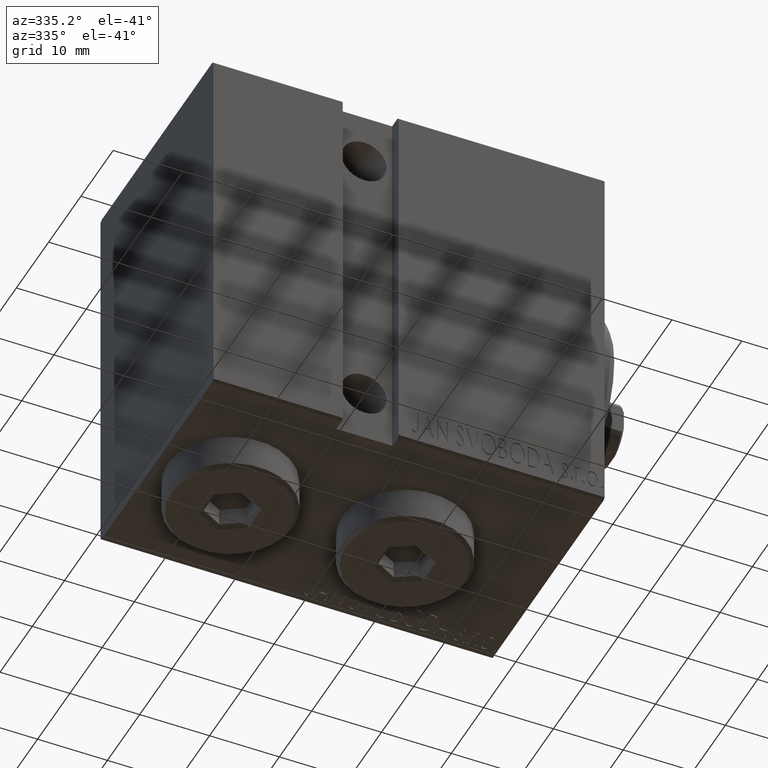
[diagram: clean part render]
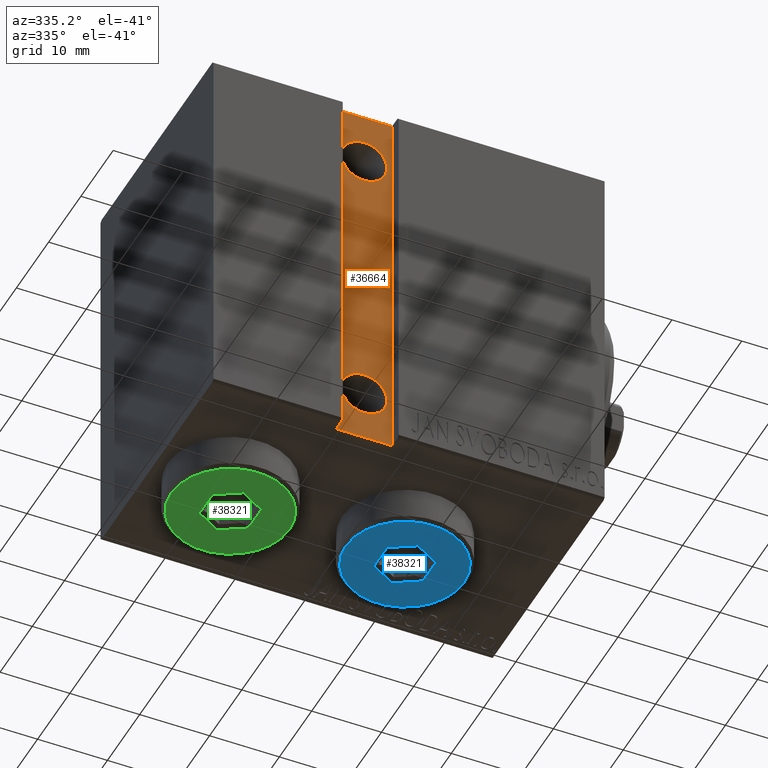
[diagram: same view with three faces highlighted in distinct colors, each labeled with its STEP entity id]
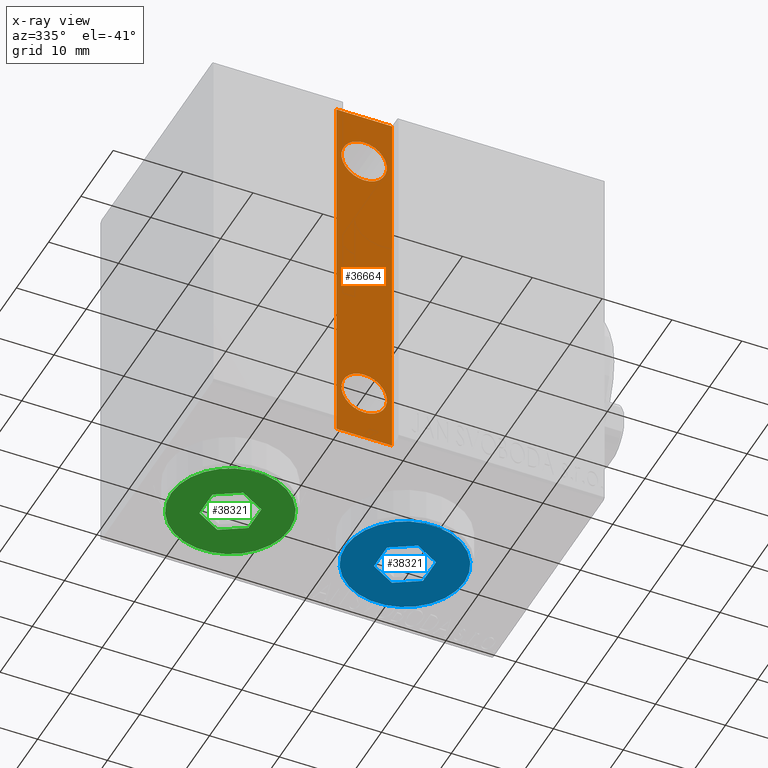
[diagram: x-ray of the same camera — body ghosted, the three highlighted faces saturated]
A machine part, auxiliary view with three faces highlighted in distinct colors.
The next image is the same camera in x-ray (body ghosted, the three faces saturated) — at least one of them is partly hidden behind the body in this view.
Their STEP definitions:

[orange] entity #36664 — the highlighted planar face has unit normal (0, 1, 0).
#680 = CARTESIAN_POINT ( 'NONE',  ( 33.50000000000000000, 15.50000000000000000, -16.75000000000000000 ) ) ;
#1299 = ORIENTED_EDGE ( 'NONE', *, *, #29968, .T. ) ;
#1307 = EDGE_CURVE ( 'NONE', #3822, #16491, #11708, .T. ) ;
#2926 = VERTEX_POINT ( 'NONE', #3183 ) ;
#3183 = CARTESIAN_POINT ( 'NONE',  ( 29.50000000000000000, 15.50000000000000178, -27.50000000000000711 ) ) ;
#3462 = CARTESIAN_POINT ( 'NONE',  ( 29.50000000000000711, 15.50000000000000178, 27.50000000000002132 ) ) ;
#3570 = DIRECTION ( 'NONE',  ( 0.000000000000000000, -1.000000000000000000, 0.000000000000000000 ) ) ;
#3822 = VERTEX_POINT ( 'NONE', #10920 ) ;
#3883 = AXIS2_PLACEMENT_3D ( 'NONE', #36866, #3570, #20327 ) ;
#4035 = EDGE_CURVE ( 'NONE', #17334, #8797, #26997, .T. ) ;
#4231 = DIRECTION ( 'NONE',  ( 0.000000000000000000, 0.000000000000000000, -1.000000000000000000 ) ) ;
#5795 = CARTESIAN_POINT ( 'NONE',  ( 33.50000000000000000, 15.50000000000000000, -20.00000000000000000 ) ) ;
#5857 = AXIS2_PLACEMENT_3D ( 'NONE', #5795, #26376, #16515 ) ;
#7130 = FACE_OUTER_BOUND ( 'NONE', #17504, .T. ) ;
#7132 = VERTEX_POINT ( 'NONE', #34988 ) ;
#8703 = VECTOR ( 'NONE', #23869, 1000.000000000000000 ) ;
#8797 = VERTEX_POINT ( 'NONE', #19573 ) ;
#8981 = CARTESIAN_POINT ( 'NONE',  ( 37.50000000000000000, 15.50000000000000178, 27.50000000000002132 ) ) ;
#10266 = FACE_BOUND ( 'NONE', #27290, .T. ) ;
#10920 = CARTESIAN_POINT ( 'NONE',  ( 33.50000000000000000, 15.50000000000000000, 16.75000000000000000 ) ) ;
#10959 = ORIENTED_EDGE ( 'NONE', *, *, #25406, .T. ) ;
#11269 = CARTESIAN_POINT ( 'NONE',  ( 29.50000000000000000, 15.50000000000000178, -27.50000000000000711 ) ) ;
#11708 = CIRCLE ( 'NONE', #35959, 3.249999999999999556 ) ;
#13540 = CARTESIAN_POINT ( 'NONE',  ( 37.50000000000000000, 15.50000000000000178, 27.50000000000002132 ) ) ;
#13832 = PLANE ( 'NONE',  #3883 ) ;
#13995 = LINE ( 'NONE', #13540, #8703 ) ;
#14570 = VECTOR ( 'NONE', #27834, 1000.000000000000000 ) ;
#16226 = ORIENTED_EDGE ( 'NONE', *, *, #1307, .T. ) ;
#16423 = EDGE_CURVE ( 'NONE', #8797, #2926, #35782, .T. ) ;
#16491 = VERTEX_POINT ( 'NONE', #39801 ) ;
#16515 = DIRECTION ( 'NONE',  ( 0.000000000000000000, 0.000000000000000000, -1.000000000000000000 ) ) ;
#17334 = VERTEX_POINT ( 'NONE', #8981 ) ;
#17504 = EDGE_LOOP ( 'NONE', ( #1299, #10959, #23547, #28820 ) ) ;
#18679 = EDGE_CURVE ( 'NONE', #16491, #3822, #25229, .T. ) ;
#19573 = CARTESIAN_POINT ( 'NONE',  ( 37.50000000000000000, 15.50000000000000355, -27.50000000000000355 ) ) ;
#20249 = DIRECTION ( 'NONE',  ( 0.000000000000000000, 0.000000000000000000, -1.000000000000000000 ) ) ;
#20327 = DIRECTION ( 'NONE',  ( 0.000000000000000000, -0.000000000000000000, -1.000000000000000000 ) ) ;
#20846 = EDGE_LOOP ( 'NONE', ( #33884, #35013 ) ) ;
#21847 = VERTEX_POINT ( 'NONE', #3462 ) ;
#22642 = DIRECTION ( 'NONE',  ( 0.000000000000000000, 0.000000000000000000, -1.000000000000000000 ) ) ;
#23007 = CIRCLE ( 'NONE', #5857, 3.249999999999999556 ) ;
#23547 = ORIENTED_EDGE ( 'NONE', *, *, #4035, .T. ) ;
#23696 = FACE_BOUND ( 'NONE', #20846, .T. ) ;
#23869 = DIRECTION ( 'NONE',  ( 1.000000000000000000, -0.000000000000000000, -0.000000000000000000 ) ) ;
#23877 = CARTESIAN_POINT ( 'NONE',  ( 37.49999999999999289, 15.50000000000000178, -27.50000000000000711 ) ) ;
#25037 = EDGE_CURVE ( 'NONE', #34250, #7132, #23007, .T. ) ;
#25229 = CIRCLE ( 'NONE', #29498, 3.249999999999999556 ) ;
#25406 = EDGE_CURVE ( 'NONE', #21847, #17334, #13995, .T. ) ;
#25469 = CARTESIAN_POINT ( 'NONE',  ( 33.50000000000000000, 15.50000000000000000, 20.00000000000000000 ) ) ;
#26376 = DIRECTION ( 'NONE',  ( 0.000000000000000000, -1.000000000000000000, 0.000000000000000000 ) ) ;
#26997 = LINE ( 'NONE', #23877, #35284 ) ;
#27290 = EDGE_LOOP ( 'NONE', ( #39441, #16226 ) ) ;
#27834 = DIRECTION ( 'NONE',  ( 1.261617073437677259E-16, 0.000000000000000000, 1.000000000000000000 ) ) ;
#28064 = EDGE_CURVE ( 'NONE', #7132, #34250, #31643, .T. ) ;
#28229 = DIRECTION ( 'NONE',  ( -1.000000000000000000, 0.000000000000000000, 0.000000000000000000 ) ) ;
#28820 = ORIENTED_EDGE ( 'NONE', *, *, #16423, .T. ) ;
#29326 = CARTESIAN_POINT ( 'NONE',  ( 33.50000000000000000, 15.50000000000000000, 20.00000000000000000 ) ) ;
#29498 = AXIS2_PLACEMENT_3D ( 'NONE', #29326, #39608, #22642 ) ;
#29968 = EDGE_CURVE ( 'NONE', #2926, #21847, #31838, .T. ) ;
#31643 = CIRCLE ( 'NONE', #43054, 3.249999999999999556 ) ;
#31838 = LINE ( 'NONE', #11269, #14570 ) ;
#33884 = ORIENTED_EDGE ( 'NONE', *, *, #25037, .T. ) ;
#34250 = VERTEX_POINT ( 'NONE', #680 ) ;
#34764 = DIRECTION ( 'NONE',  ( 0.000000000000000000, -1.000000000000000000, 0.000000000000000000 ) ) ;
#34988 = CARTESIAN_POINT ( 'NONE',  ( 33.50000000000000000, 15.50000000000000000, -23.25000000000000000 ) ) ;
#35013 = ORIENTED_EDGE ( 'NONE', *, *, #28064, .T. ) ;
#35284 = VECTOR ( 'NONE', #40587, 1000.000000000000000 ) ;
#35782 = LINE ( 'NONE', #39356, #38698 ) ;
#35959 = AXIS2_PLACEMENT_3D ( 'NONE', #25469, #39064, #4231 ) ;
#36664 = ADVANCED_FACE ( 'NONE', ( #10266, #23696, #7130 ), #13832, .F. ) ;
#36866 = CARTESIAN_POINT ( 'NONE',  ( 0.000000000000000000, 15.50000000000000178, 0.000000000000000000 ) ) ;
#38698 = VECTOR ( 'NONE', #28229, 1000.000000000000000 ) ;
#39064 = DIRECTION ( 'NONE',  ( 0.000000000000000000, -1.000000000000000000, 0.000000000000000000 ) ) ;
#39356 = CARTESIAN_POINT ( 'NONE',  ( 37.49999999999999289, 15.50000000000000178, -27.50000000000000711 ) ) ;
#39441 = ORIENTED_EDGE ( 'NONE', *, *, #18679, .T. ) ;
#39608 = DIRECTION ( 'NONE',  ( 0.000000000000000000, -1.000000000000000000, 0.000000000000000000 ) ) ;
#39801 = CARTESIAN_POINT ( 'NONE',  ( 33.50000000000000000, 15.50000000000000000, 23.25000000000000000 ) ) ;
#40587 = DIRECTION ( 'NONE',  ( -1.261617073437677259E-16, -0.000000000000000000, -1.000000000000000000 ) ) ;
#41028 = CARTESIAN_POINT ( 'NONE',  ( 33.50000000000000000, 15.50000000000000000, -20.00000000000000000 ) ) ;
#43054 = AXIS2_PLACEMENT_3D ( 'NONE', #41028, #34764, #20249 ) ;

[blue] entity #38321 — the highlighted planar face has unit normal (-0, 0, -1).
#1521 = VECTOR ( 'NONE', #19409, 1000.000000000000000 ) ;
#2346 = CARTESIAN_POINT ( 'NONE',  ( -0.2500000000000027756, 3.897114317029978459, 5.000000000000000000 ) ) ;
#2777 = EDGE_CURVE ( 'NONE', #17682, #22112, #5228, .T. ) ;
#3087 = VECTOR ( 'NONE', #6358, 1000.000000000000000 ) ;
#4596 = CIRCLE ( 'NONE', #43119, 8.500000000000010658 ) ;
#4952 = VERTEX_POINT ( 'NONE', #27005 ) ;
#5228 = LINE ( 'NONE', #22666, #17473 ) ;
#5776 = LINE ( 'NONE', #42874, #1521 ) ;
#6358 = DIRECTION ( 'NONE',  ( 0.8660254037844387076, -0.4999999999999998890, 0.000000000000000000 ) ) ;
#6781 = CARTESIAN_POINT ( 'NONE',  ( 0.000000000000000000, 0.000000000000000000, 5.000000000000000000 ) ) ;
#6843 = ORIENTED_EDGE ( 'NONE', *, *, #18925, .T. ) ;
#7339 = CARTESIAN_POINT ( 'NONE',  ( 3.500000000000006661, -2.020725942163693833, 5.000000000000000000 ) ) ;
#8771 = VECTOR ( 'NONE', #22530, 1000.000000000000000 ) ;
#8880 = AXIS2_PLACEMENT_3D ( 'NONE', #9656, #44061, #19719 ) ;
#9190 = VERTEX_POINT ( 'NONE', #19737 ) ;
#9595 = LINE ( 'NONE', #30399, #11742 ) ;
#9656 = CARTESIAN_POINT ( 'NONE',  ( 0.000000000000000000, 0.000000000000000000, 5.000000000000000000 ) ) ;
#9893 = DIRECTION ( 'NONE',  ( 0.000000000000000000, 0.000000000000000000, 1.000000000000000000 ) ) ;
#10090 = CARTESIAN_POINT ( 'NONE',  ( -1.006139216460143630E-15, -4.041451884327387667, 5.000000000000000000 ) ) ;
#10229 = ORIENTED_EDGE ( 'NONE', *, *, #34769, .T. ) ;
#10662 = EDGE_LOOP ( 'NONE', ( #41385, #13304 ) ) ;
#11030 = EDGE_LOOP ( 'NONE', ( #11402, #37823, #6843, #10229, #36939, #41243 ) ) ;
#11402 = ORIENTED_EDGE ( 'NONE', *, *, #14061, .T. ) ;
#11742 = VECTOR ( 'NONE', #23025, 1000.000000000000114 ) ;
#11927 = DIRECTION ( 'NONE',  ( -0.8660254037844387076, -0.4999999999999998890, 0.000000000000000000 ) ) ;
#12121 = PLANE ( 'NONE',  #33856 ) ;
#12994 = CARTESIAN_POINT ( 'NONE',  ( 0.000000000000000000, 0.000000000000000000, 5.000000000000000000 ) ) ;
#13304 = ORIENTED_EDGE ( 'NONE', *, *, #22076, .T. ) ;
#14061 = EDGE_CURVE ( 'NONE', #9190, #21022, #5776, .T. ) ;
#15183 = VERTEX_POINT ( 'NONE', #36137 ) ;
#16181 = DIRECTION ( 'NONE',  ( 0.8660254037844387076, 0.4999999999999998335, 0.000000000000000000 ) ) ;
#17473 = VECTOR ( 'NONE', #11927, 1000.000000000000000 ) ;
#17682 = VERTEX_POINT ( 'NONE', #7339 ) ;
#18886 = LINE ( 'NONE', #2346, #40080 ) ;
#18925 = EDGE_CURVE ( 'NONE', #15183, #30661, #33190, .T. ) ;
#19409 = DIRECTION ( 'NONE',  ( 0.000000000000000000, 1.000000000000000000, 0.000000000000000000 ) ) ;
#19719 = DIRECTION ( 'NONE',  ( 1.000000000000000000, 0.000000000000000000, 0.000000000000000000 ) ) ;
#19737 = CARTESIAN_POINT ( 'NONE',  ( -3.500000000000006661, -2.020725942163694278, 5.000000000000000000 ) ) ;
#19999 = VERTEX_POINT ( 'NONE', #30466 ) ;
#21022 = VERTEX_POINT ( 'NONE', #42605 ) ;
#22076 = EDGE_CURVE ( 'NONE', #4952, #19999, #23909, .T. ) ;
#22112 = VERTEX_POINT ( 'NONE', #10090 ) ;
#22530 = DIRECTION ( 'NONE',  ( 0.000000000000000000, -1.000000000000000000, 0.000000000000000000 ) ) ;
#22666 = CARTESIAN_POINT ( 'NONE',  ( 0.2500000000000027756, -3.897114317029979347, 5.000000000000000000 ) ) ;
#23025 = DIRECTION ( 'NONE',  ( -0.8660254037844385966, 0.4999999999999999445, 0.000000000000000000 ) ) ;
#23410 = CARTESIAN_POINT ( 'NONE',  ( 3.500000000000006661, -1.732050807568878303, 5.000000000000000000 ) ) ;
#23909 = CIRCLE ( 'NONE', #8880, 8.500000000000010658 ) ;
#26438 = DIRECTION ( 'NONE',  ( 0.000000000000000000, 0.000000000000000000, 1.000000000000000000 ) ) ;
#26726 = CARTESIAN_POINT ( 'NONE',  ( 3.250000000000003109, 2.165063509461103042, 5.000000000000000000 ) ) ;
#27005 = CARTESIAN_POINT ( 'NONE',  ( 8.500000000000010658, 1.071565949253934716E-15, 5.000000000000000000 ) ) ;
#29125 = FACE_OUTER_BOUND ( 'NONE', #10662, .T. ) ;
#30225 = EDGE_CURVE ( 'NONE', #19999, #4952, #4596, .T. ) ;
#30399 = CARTESIAN_POINT ( 'NONE',  ( -3.250000000000003109, -2.165063509461102598, 5.000000000000000000 ) ) ;
#30466 = CARTESIAN_POINT ( 'NONE',  ( -8.500000000000010658, 0.000000000000000000, 5.000000000000000000 ) ) ;
#30661 = VERTEX_POINT ( 'NONE', #35244 ) ;
#31061 = EDGE_CURVE ( 'NONE', #21022, #15183, #18886, .T. ) ;
#33190 = LINE ( 'NONE', #26726, #3087 ) ;
#33594 = DIRECTION ( 'NONE',  ( 1.000000000000000000, 0.000000000000000000, 0.000000000000000000 ) ) ;
#33856 = AXIS2_PLACEMENT_3D ( 'NONE', #12994, #26438, #40272 ) ;
#34769 = EDGE_CURVE ( 'NONE', #30661, #17682, #43055, .T. ) ;
#35244 = CARTESIAN_POINT ( 'NONE',  ( 3.500000000000006661, 2.020725942163694722, 5.000000000000000000 ) ) ;
#36137 = CARTESIAN_POINT ( 'NONE',  ( 1.590596867181068292E-15, 4.041451884327386779, 5.000000000000000000 ) ) ;
#36939 = ORIENTED_EDGE ( 'NONE', *, *, #2777, .T. ) ;
#37592 = EDGE_CURVE ( 'NONE', #22112, #9190, #9595, .T. ) ;
#37823 = ORIENTED_EDGE ( 'NONE', *, *, #31061, .T. ) ;
#38321 = ADVANCED_FACE ( 'NONE', ( #43399, #29125 ), #12121, .T. ) ;
#40080 = VECTOR ( 'NONE', #16181, 1000.000000000000000 ) ;
#40272 = DIRECTION ( 'NONE',  ( 1.000000000000000000, 0.000000000000000000, -0.000000000000000000 ) ) ;
#41243 = ORIENTED_EDGE ( 'NONE', *, *, #37592, .T. ) ;
#41385 = ORIENTED_EDGE ( 'NONE', *, *, #30225, .T. ) ;
#42605 = CARTESIAN_POINT ( 'NONE',  ( -3.500000000000006661, 2.020725942163692945, 5.000000000000000000 ) ) ;
#42874 = CARTESIAN_POINT ( 'NONE',  ( -3.500000000000006661, 1.732050807568878081, 5.000000000000000000 ) ) ;
#43055 = LINE ( 'NONE', #23410, #8771 ) ;
#43119 = AXIS2_PLACEMENT_3D ( 'NONE', #6781, #9893, #33594 ) ;
#43399 = FACE_BOUND ( 'NONE', #11030, .T. ) ;
#44061 = DIRECTION ( 'NONE',  ( 0.000000000000000000, 0.000000000000000000, 1.000000000000000000 ) ) ;

[green] entity #38321 — the highlighted planar face has unit normal (-0, 0, -1).
#1521 = VECTOR ( 'NONE', #19409, 1000.000000000000000 ) ;
#2346 = CARTESIAN_POINT ( 'NONE',  ( -0.2500000000000027756, 3.897114317029978459, 5.000000000000000000 ) ) ;
#2777 = EDGE_CURVE ( 'NONE', #17682, #22112, #5228, .T. ) ;
#3087 = VECTOR ( 'NONE', #6358, 1000.000000000000000 ) ;
#4596 = CIRCLE ( 'NONE', #43119, 8.500000000000010658 ) ;
#4952 = VERTEX_POINT ( 'NONE', #27005 ) ;
#5228 = LINE ( 'NONE', #22666, #17473 ) ;
#5776 = LINE ( 'NONE', #42874, #1521 ) ;
#6358 = DIRECTION ( 'NONE',  ( 0.8660254037844387076, -0.4999999999999998890, 0.000000000000000000 ) ) ;
#6781 = CARTESIAN_POINT ( 'NONE',  ( 0.000000000000000000, 0.000000000000000000, 5.000000000000000000 ) ) ;
#6843 = ORIENTED_EDGE ( 'NONE', *, *, #18925, .T. ) ;
#7339 = CARTESIAN_POINT ( 'NONE',  ( 3.500000000000006661, -2.020725942163693833, 5.000000000000000000 ) ) ;
#8771 = VECTOR ( 'NONE', #22530, 1000.000000000000000 ) ;
#8880 = AXIS2_PLACEMENT_3D ( 'NONE', #9656, #44061, #19719 ) ;
#9190 = VERTEX_POINT ( 'NONE', #19737 ) ;
#9595 = LINE ( 'NONE', #30399, #11742 ) ;
#9656 = CARTESIAN_POINT ( 'NONE',  ( 0.000000000000000000, 0.000000000000000000, 5.000000000000000000 ) ) ;
#9893 = DIRECTION ( 'NONE',  ( 0.000000000000000000, 0.000000000000000000, 1.000000000000000000 ) ) ;
#10090 = CARTESIAN_POINT ( 'NONE',  ( -1.006139216460143630E-15, -4.041451884327387667, 5.000000000000000000 ) ) ;
#10229 = ORIENTED_EDGE ( 'NONE', *, *, #34769, .T. ) ;
#10662 = EDGE_LOOP ( 'NONE', ( #41385, #13304 ) ) ;
#11030 = EDGE_LOOP ( 'NONE', ( #11402, #37823, #6843, #10229, #36939, #41243 ) ) ;
#11402 = ORIENTED_EDGE ( 'NONE', *, *, #14061, .T. ) ;
#11742 = VECTOR ( 'NONE', #23025, 1000.000000000000114 ) ;
#11927 = DIRECTION ( 'NONE',  ( -0.8660254037844387076, -0.4999999999999998890, 0.000000000000000000 ) ) ;
#12121 = PLANE ( 'NONE',  #33856 ) ;
#12994 = CARTESIAN_POINT ( 'NONE',  ( 0.000000000000000000, 0.000000000000000000, 5.000000000000000000 ) ) ;
#13304 = ORIENTED_EDGE ( 'NONE', *, *, #22076, .T. ) ;
#14061 = EDGE_CURVE ( 'NONE', #9190, #21022, #5776, .T. ) ;
#15183 = VERTEX_POINT ( 'NONE', #36137 ) ;
#16181 = DIRECTION ( 'NONE',  ( 0.8660254037844387076, 0.4999999999999998335, 0.000000000000000000 ) ) ;
#17473 = VECTOR ( 'NONE', #11927, 1000.000000000000000 ) ;
#17682 = VERTEX_POINT ( 'NONE', #7339 ) ;
#18886 = LINE ( 'NONE', #2346, #40080 ) ;
#18925 = EDGE_CURVE ( 'NONE', #15183, #30661, #33190, .T. ) ;
#19409 = DIRECTION ( 'NONE',  ( 0.000000000000000000, 1.000000000000000000, 0.000000000000000000 ) ) ;
#19719 = DIRECTION ( 'NONE',  ( 1.000000000000000000, 0.000000000000000000, 0.000000000000000000 ) ) ;
#19737 = CARTESIAN_POINT ( 'NONE',  ( -3.500000000000006661, -2.020725942163694278, 5.000000000000000000 ) ) ;
#19999 = VERTEX_POINT ( 'NONE', #30466 ) ;
#21022 = VERTEX_POINT ( 'NONE', #42605 ) ;
#22076 = EDGE_CURVE ( 'NONE', #4952, #19999, #23909, .T. ) ;
#22112 = VERTEX_POINT ( 'NONE', #10090 ) ;
#22530 = DIRECTION ( 'NONE',  ( 0.000000000000000000, -1.000000000000000000, 0.000000000000000000 ) ) ;
#22666 = CARTESIAN_POINT ( 'NONE',  ( 0.2500000000000027756, -3.897114317029979347, 5.000000000000000000 ) ) ;
#23025 = DIRECTION ( 'NONE',  ( -0.8660254037844385966, 0.4999999999999999445, 0.000000000000000000 ) ) ;
#23410 = CARTESIAN_POINT ( 'NONE',  ( 3.500000000000006661, -1.732050807568878303, 5.000000000000000000 ) ) ;
#23909 = CIRCLE ( 'NONE', #8880, 8.500000000000010658 ) ;
#26438 = DIRECTION ( 'NONE',  ( 0.000000000000000000, 0.000000000000000000, 1.000000000000000000 ) ) ;
#26726 = CARTESIAN_POINT ( 'NONE',  ( 3.250000000000003109, 2.165063509461103042, 5.000000000000000000 ) ) ;
#27005 = CARTESIAN_POINT ( 'NONE',  ( 8.500000000000010658, 1.071565949253934716E-15, 5.000000000000000000 ) ) ;
#29125 = FACE_OUTER_BOUND ( 'NONE', #10662, .T. ) ;
#30225 = EDGE_CURVE ( 'NONE', #19999, #4952, #4596, .T. ) ;
#30399 = CARTESIAN_POINT ( 'NONE',  ( -3.250000000000003109, -2.165063509461102598, 5.000000000000000000 ) ) ;
#30466 = CARTESIAN_POINT ( 'NONE',  ( -8.500000000000010658, 0.000000000000000000, 5.000000000000000000 ) ) ;
#30661 = VERTEX_POINT ( 'NONE', #35244 ) ;
#31061 = EDGE_CURVE ( 'NONE', #21022, #15183, #18886, .T. ) ;
#33190 = LINE ( 'NONE', #26726, #3087 ) ;
#33594 = DIRECTION ( 'NONE',  ( 1.000000000000000000, 0.000000000000000000, 0.000000000000000000 ) ) ;
#33856 = AXIS2_PLACEMENT_3D ( 'NONE', #12994, #26438, #40272 ) ;
#34769 = EDGE_CURVE ( 'NONE', #30661, #17682, #43055, .T. ) ;
#35244 = CARTESIAN_POINT ( 'NONE',  ( 3.500000000000006661, 2.020725942163694722, 5.000000000000000000 ) ) ;
#36137 = CARTESIAN_POINT ( 'NONE',  ( 1.590596867181068292E-15, 4.041451884327386779, 5.000000000000000000 ) ) ;
#36939 = ORIENTED_EDGE ( 'NONE', *, *, #2777, .T. ) ;
#37592 = EDGE_CURVE ( 'NONE', #22112, #9190, #9595, .T. ) ;
#37823 = ORIENTED_EDGE ( 'NONE', *, *, #31061, .T. ) ;
#38321 = ADVANCED_FACE ( 'NONE', ( #43399, #29125 ), #12121, .T. ) ;
#40080 = VECTOR ( 'NONE', #16181, 1000.000000000000000 ) ;
#40272 = DIRECTION ( 'NONE',  ( 1.000000000000000000, 0.000000000000000000, -0.000000000000000000 ) ) ;
#41243 = ORIENTED_EDGE ( 'NONE', *, *, #37592, .T. ) ;
#41385 = ORIENTED_EDGE ( 'NONE', *, *, #30225, .T. ) ;
#42605 = CARTESIAN_POINT ( 'NONE',  ( -3.500000000000006661, 2.020725942163692945, 5.000000000000000000 ) ) ;
#42874 = CARTESIAN_POINT ( 'NONE',  ( -3.500000000000006661, 1.732050807568878081, 5.000000000000000000 ) ) ;
#43055 = LINE ( 'NONE', #23410, #8771 ) ;
#43119 = AXIS2_PLACEMENT_3D ( 'NONE', #6781, #9893, #33594 ) ;
#43399 = FACE_BOUND ( 'NONE', #11030, .T. ) ;
#44061 = DIRECTION ( 'NONE',  ( 0.000000000000000000, 0.000000000000000000, 1.000000000000000000 ) ) ;